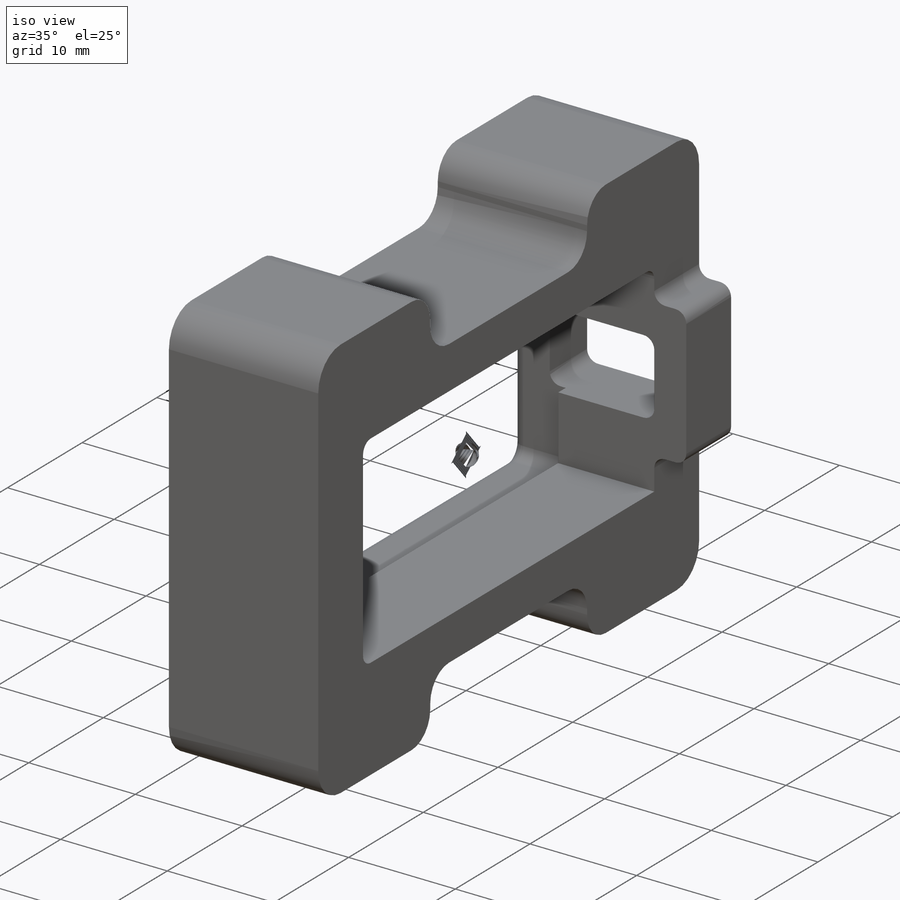
[diagram: iso view]
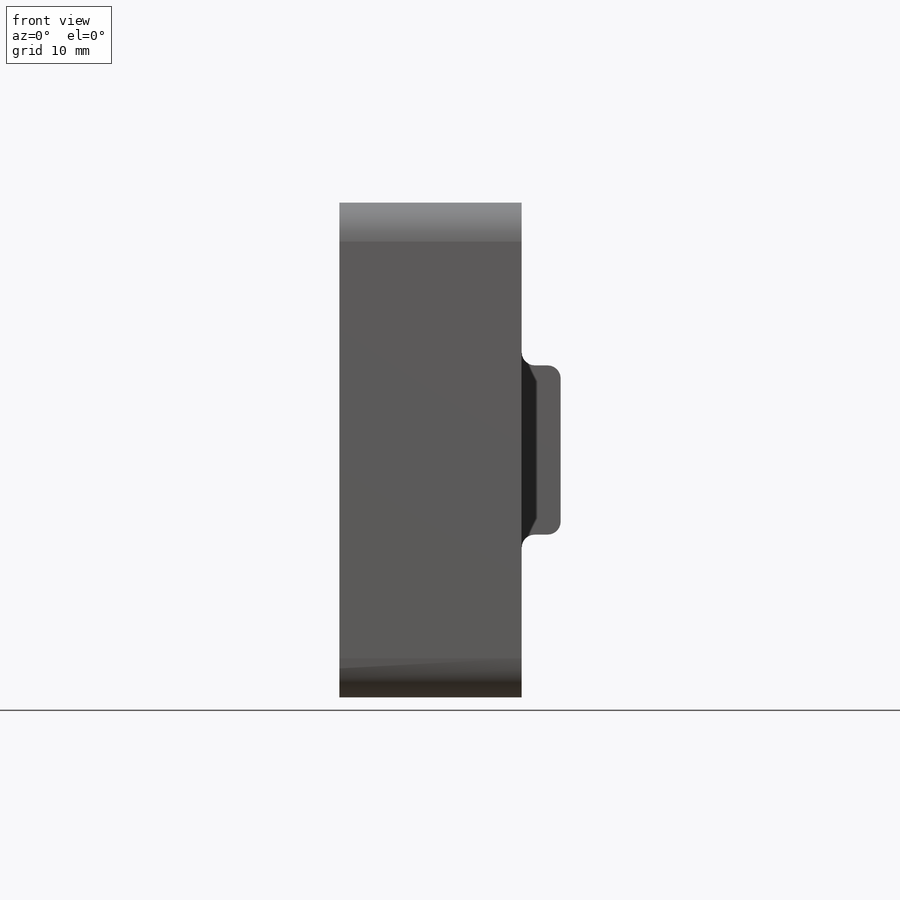
[diagram: front view]
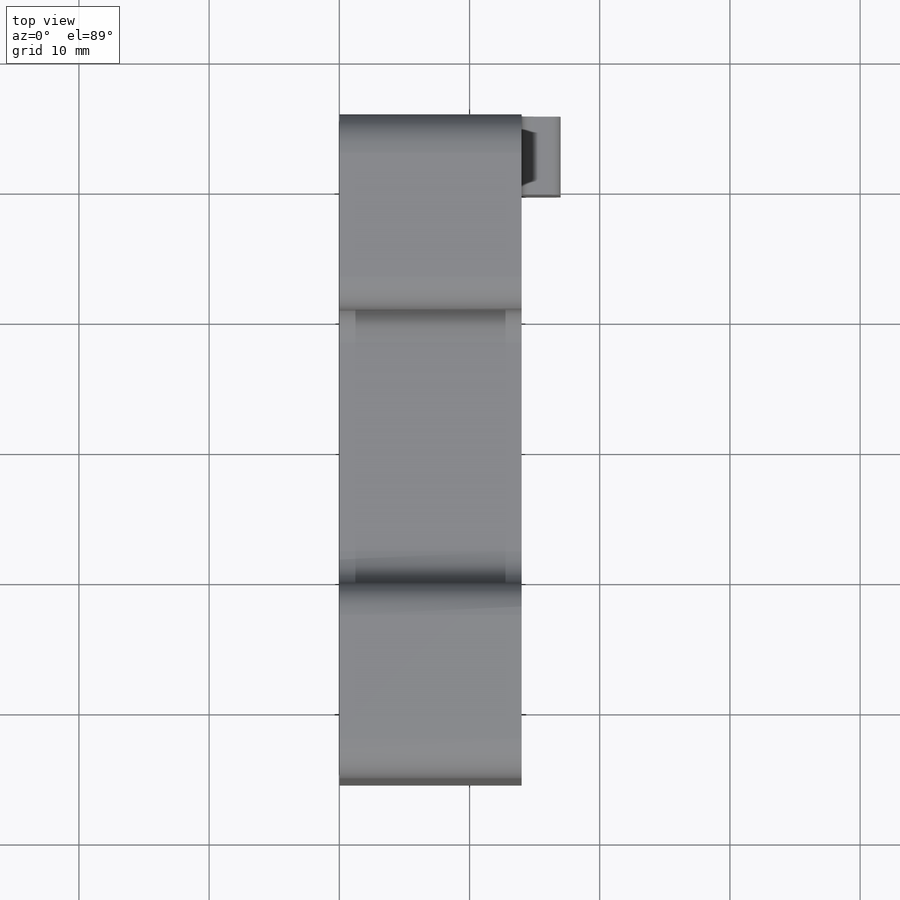
[diagram: top view]
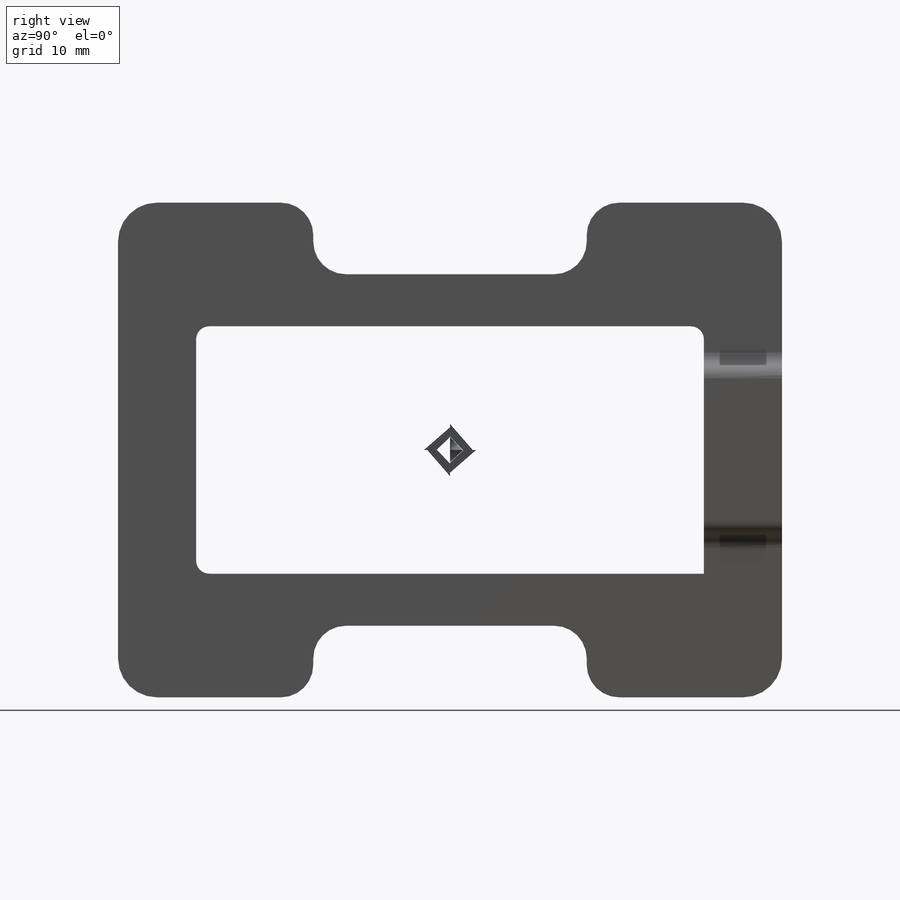
[diagram: right view]
SOLIDWORKS PART (.sldprt)
format: sldprt  version: not decoded by parser v0  size: 770,048 bytes
history: native  units: mm
features: sketch x6, fillet x5, extrude x3, cut_extrude x3, material x1 (+12 scaffold rows collapsed)
feature tree (30):
  scaffold x12  (default folders/planes/origin — collapsed)
  material  "ABS"
  sketch  "Sketch1"  dims[D1=38.0mm D2=51.0mm D3=41.0mm D4=21.0mm]
  extrude  "Main Body"  Depth=20mm
  sketch  "Sketch2"  dims[D1=0.0mm D2=1.0mm]
  extrude  "End Stop"  Depth=10mm
  fillet  "Contouring"  Radius=1mm
  sketch  "Sketch4"  dims[D1=3.0mm D2=15.0mm]
  cut_extrude  "Clearance - Middle"  [1 undecoded]
  fillet  "Edge Contouring"  Radius=3mm
  fillet  "Inner Contouring"  Radius=2.5mm
  fillet  "Fit Contouring"  Radius=1mm
  sketch  "Sketch5"  dims[D1=4.0mm]
  cut_extrude  "Single Cut"  [1 undecoded]
  sketch  "Sketch6"  dims[D1=7.0mm D2=13.0mm]
  cut_extrude  "Clearance - Wire"  [1 undecoded]
  sketch  "Sketch7"  dims[D1=3.0mm D2=3.0mm]
  extrude  "Wire Cap"  [1 undecoded]
  fillet  "Wire Clearance Contouring"  Radius=1mm
decode coverage: 13 of 17 modeling features carry decoded parameters
note: 4 parameter values undecoded
summary: no parameter record found for 4 features
note: suppression state not decoded; provenance and decode notes live in map.json
